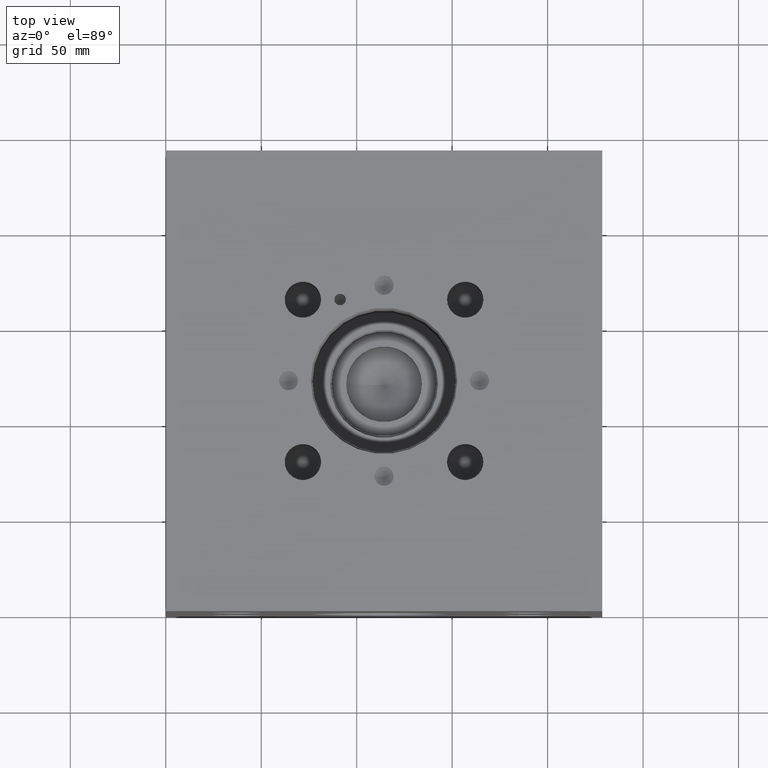
[diagram: clean part render]
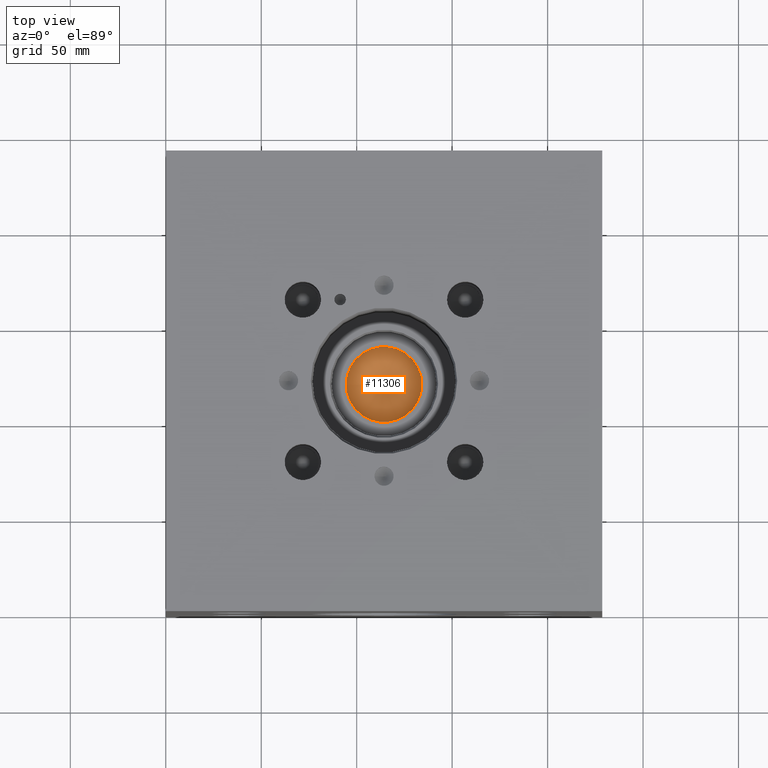
[diagram: same view with one face highlighted and labeled with its STEP entity id]
A machine part, top view. The second image highlights one B-rep face of the part: STEP entity #11306.
In plain terms, the highlighted conical surface has half-angle 60 deg.
Its self-contained STEP definition (entity closure, byte-faithful):
#133=CONICAL_SURFACE('',#12064,19.8374,1.04719754855092);
#396=CIRCLE('',#12062,19.8374);
#397=CIRCLE('',#12063,19.8374);
#1360=FACE_OUTER_BOUND('',#2018,.T.);
#2018=EDGE_LOOP('',(#9895,#9896,#9897,#9898));
#3125=LINE('',#19203,#4213);
#4213=VECTOR('',#14633,19.8374);
#5291=VERTEX_POINT('',#19196);
#5292=VERTEX_POINT('',#19198);
#5293=VERTEX_POINT('',#19202);
#6845=EDGE_CURVE('',#5291,#5292,#396,.T.);
#6846=EDGE_CURVE('',#5292,#5291,#397,.T.);
#6847=EDGE_CURVE('',#5291,#5293,#3125,.T.);
#9895=ORIENTED_EDGE('',*,*,#6846,.F.);
#9896=ORIENTED_EDGE('',*,*,#6845,.F.);
#9897=ORIENTED_EDGE('',*,*,#6847,.T.);
#9898=ORIENTED_EDGE('',*,*,#6847,.F.);
#11306=ADVANCED_FACE('',(#1360),#133,.F.);
#12062=AXIS2_PLACEMENT_3D('',#19199,#14627,#14628);
#12063=AXIS2_PLACEMENT_3D('',#19200,#14629,#14630);
#12064=AXIS2_PLACEMENT_3D('',#19201,#14631,#14632);
#14627=DIRECTION('center_axis',(0.,0.,-1.));
#14628=DIRECTION('ref_axis',(1.,0.,0.));
#14629=DIRECTION('center_axis',(0.,0.,-1.));
#14630=DIRECTION('ref_axis',(1.,0.,0.));
#14631=DIRECTION('center_axis',(0.,0.,1.));
#14632=DIRECTION('ref_axis',(1.,0.,0.));
#14633=DIRECTION('',(0.866025402461602,-1.0605752371049E-16,-0.500000002291221));
#19196=CARTESIAN_POINT('',(94.4626,120.65,74.0686718));
#19198=CARTESIAN_POINT('',(134.1374,120.65,74.0686718));
#19199=CARTESIAN_POINT('Origin',(114.3,120.65,74.0686718));
#19200=CARTESIAN_POINT('Origin',(114.3,120.65,74.0686718));
#19201=CARTESIAN_POINT('Origin',(114.3,120.65,74.0686718));
#19202=CARTESIAN_POINT('',(114.3,120.65,62.6155435));
#19203=CARTESIAN_POINT('',(94.4626,120.65,74.0686718));